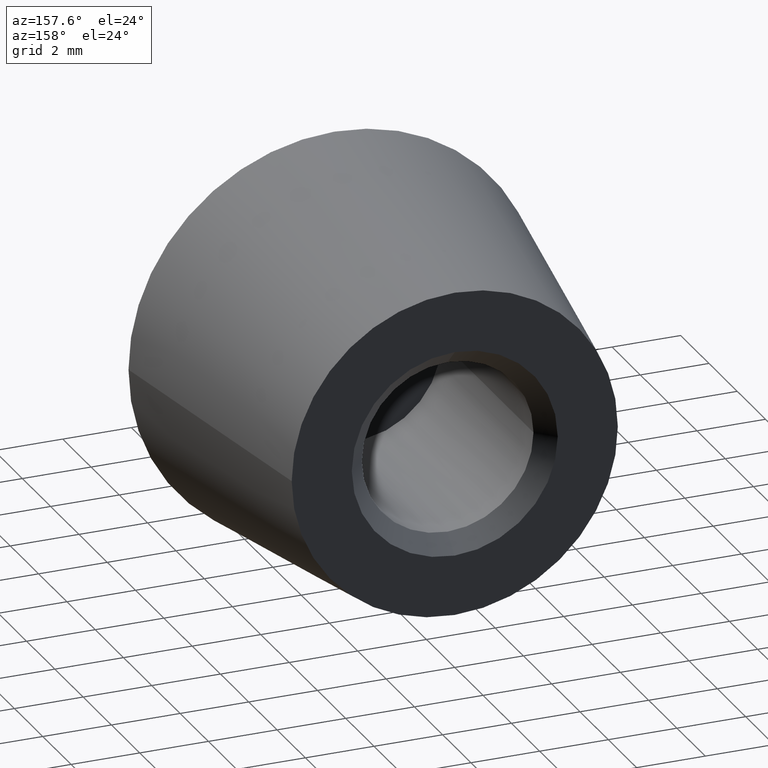
[diagram: clean part render]
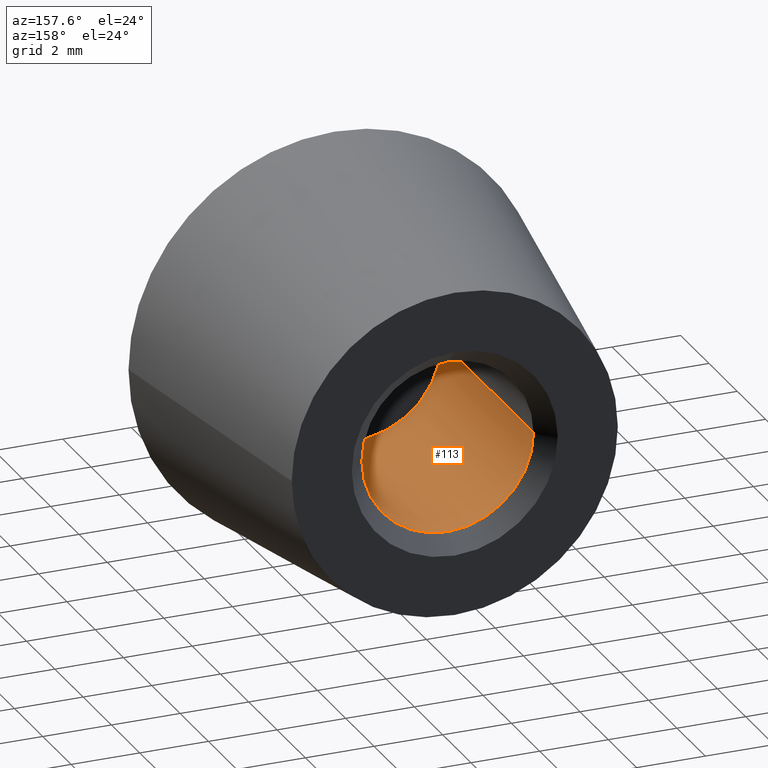
[diagram: same view with one face highlighted and labeled with its STEP entity id]
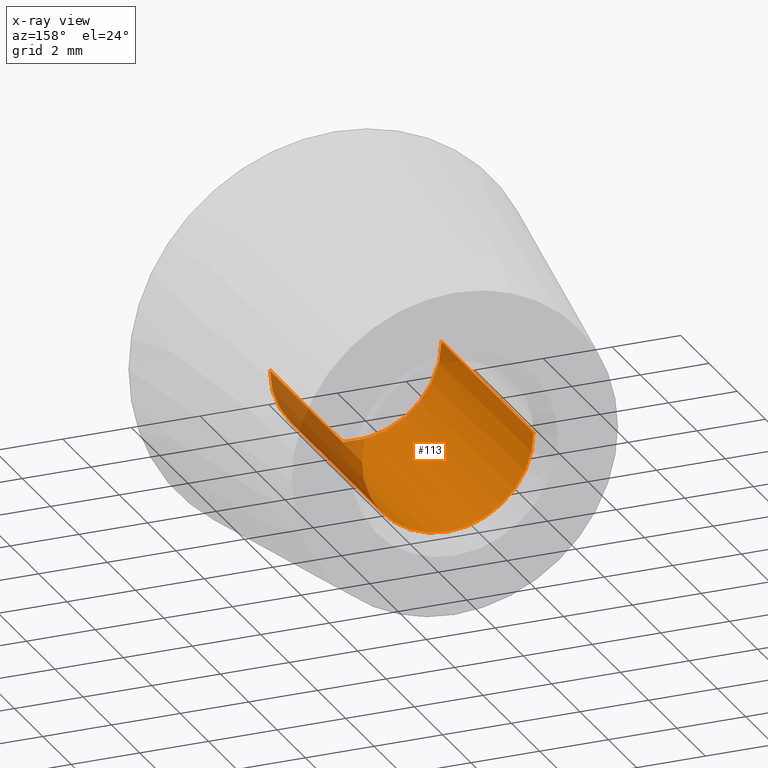
[diagram: x-ray of the same camera — body ghosted, the highlighted face saturated]
A machine part, auxiliary view. The second image highlights one B-rep face of the part: STEP entity #113.
The next image is the same camera in x-ray: the body ghosted, the highlighted face saturated — about 12% of this face is hidden behind the body in this view.
In plain terms, the highlighted cylindrical surface (partial cylindrical patch) has radius 2.5 mm, axis along (-0, 1, -0).
Its self-contained STEP definition (entity closure, byte-faithful):
#1 = CIRCLE ( 'NONE', #196, 2.500000000000000400 ) ;
#16 = CARTESIAN_POINT ( 'NONE',  ( 3.367778697655221500E-016, -0.5000000000000064400, -2.500000000000000400 ) ) ;
#19 = CIRCLE ( 'NONE', #307, 2.500000000000000400 ) ;
#21 = DIRECTION ( 'NONE',  ( -0.0000000000000000000, -1.000000000000000000, -0.0000000000000000000 ) ) ;
#23 = VERTEX_POINT ( 'NONE', #74 ) ;
#35 = LINE ( 'NONE', #308, #248 ) ;
#43 = CARTESIAN_POINT ( 'NONE',  ( 2.500000000000000400, -0.5000000000000064400, 3.061616997868382600E-016 ) ) ;
#51 = DIRECTION ( 'NONE',  ( 3.491481338843133400E-015, -1.000000000000000000, -0.0000000000000000000 ) ) ;
#59 = CARTESIAN_POINT ( 'NONE',  ( 2.500000000000049300, -14.07106781186546000, 3.061616997868383600E-016 ) ) ;
#74 = CARTESIAN_POINT ( 'NONE',  ( 2.500000000000024900, -6.999999999999991100, 3.061616997868396900E-016 ) ) ;
#78 = DIRECTION ( 'NONE',  ( 0.0000000000000000000, 0.0000000000000000000, 1.000000000000000000 ) ) ;
#83 = CYLINDRICAL_SURFACE ( 'NONE', #125, 2.500000000000000400 ) ;
#92 = ORIENTED_EDGE ( 'NONE', *, *, #294, .F. ) ;
#97 = ORIENTED_EDGE ( 'NONE', *, *, #275, .T. ) ;
#112 = DIRECTION ( 'NONE',  ( 0.0000000000000000000, 0.0000000000000000000, 1.000000000000000000 ) ) ;
#113 = ADVANCED_FACE ( 'NONE', ( #224 ), #83, .F. ) ;
#120 = VERTEX_POINT ( 'NONE', #16 ) ;
#125 = AXIS2_PLACEMENT_3D ( 'NONE', #169, #239, #140 ) ;
#128 = VERTEX_POINT ( 'NONE', #43 ) ;
#135 = VECTOR ( 'NONE', #278, 1000.000000000000000 ) ;
#140 = DIRECTION ( 'NONE',  ( -1.000000000000000000, -3.469446951953613400E-015, 0.0000000000000000000 ) ) ;
#150 = VERTEX_POINT ( 'NONE', #214 ) ;
#151 = ORIENTED_EDGE ( 'NONE', *, *, #267, .F. ) ;
#155 = CIRCLE ( 'NONE', #229, 2.500000000000000400 ) ;
#163 = ORIENTED_EDGE ( 'NONE', *, *, #313, .T. ) ;
#166 = CARTESIAN_POINT ( 'NONE',  ( -2.500000000000000000, -0.5000000000000064400, 0.0000000000000000000 ) ) ;
#169 = CARTESIAN_POINT ( 'NONE',  ( 4.912887068272456400E-014, -14.07106781186546800, 0.0000000000000000000 ) ) ;
#175 = CARTESIAN_POINT ( 'NONE',  ( 0.0000000000000000000, -0.5000000000000064400, 0.0000000000000000000 ) ) ;
#196 = AXIS2_PLACEMENT_3D ( 'NONE', #175, #21, #78 ) ;
#198 = VERTEX_POINT ( 'NONE', #166 ) ;
#204 = CARTESIAN_POINT ( 'NONE',  ( 0.0000000000000000000, -0.5000000000000064400, 0.0000000000000000000 ) ) ;
#214 = CARTESIAN_POINT ( 'NONE',  ( -2.499999999999976000, -7.000000000000008900, 0.0000000000000000000 ) ) ;
#222 = EDGE_LOOP ( 'NONE', ( #163, #97, #282, #92, #151 ) ) ;
#224 = FACE_OUTER_BOUND ( 'NONE', #222, .T. ) ;
#229 = AXIS2_PLACEMENT_3D ( 'NONE', #268, #51, #290 ) ;
#231 = DIRECTION ( 'NONE',  ( -0.0000000000000000000, -1.000000000000000000, -0.0000000000000000000 ) ) ;
#239 = DIRECTION ( 'NONE',  ( -3.491481338843133400E-015, 1.000000000000000000, -0.0000000000000000000 ) ) ;
#248 = VECTOR ( 'NONE', #302, 1000.000000000000000 ) ;
#255 = LINE ( 'NONE', #59, #135 ) ;
#265 = EDGE_CURVE ( 'NONE', #120, #128, #19, .T. ) ;
#267 = EDGE_CURVE ( 'NONE', #150, #198, #35, .T. ) ;
#268 = CARTESIAN_POINT ( 'NONE',  ( 2.444036937190193300E-014, -7.000000000000000000, 0.0000000000000000000 ) ) ;
#275 = EDGE_CURVE ( 'NONE', #23, #128, #255, .T. ) ;
#278 = DIRECTION ( 'NONE',  ( -3.491481338843133400E-015, 1.000000000000000000, -0.0000000000000000000 ) ) ;
#282 = ORIENTED_EDGE ( 'NONE', *, *, #265, .F. ) ;
#290 = DIRECTION ( 'NONE',  ( -1.000000000000000000, -3.469446951953613400E-015, 0.0000000000000000000 ) ) ;
#294 = EDGE_CURVE ( 'NONE', #198, #120, #1, .T. ) ;
#302 = DIRECTION ( 'NONE',  ( -3.491481338843133400E-015, 1.000000000000000000, -0.0000000000000000000 ) ) ;
#307 = AXIS2_PLACEMENT_3D ( 'NONE', #204, #231, #112 ) ;
#308 = CARTESIAN_POINT ( 'NONE',  ( -2.499999999999951600, -14.07106781186547700, 0.0000000000000000000 ) ) ;
#313 = EDGE_CURVE ( 'NONE', #150, #23, #155, .T. ) ;